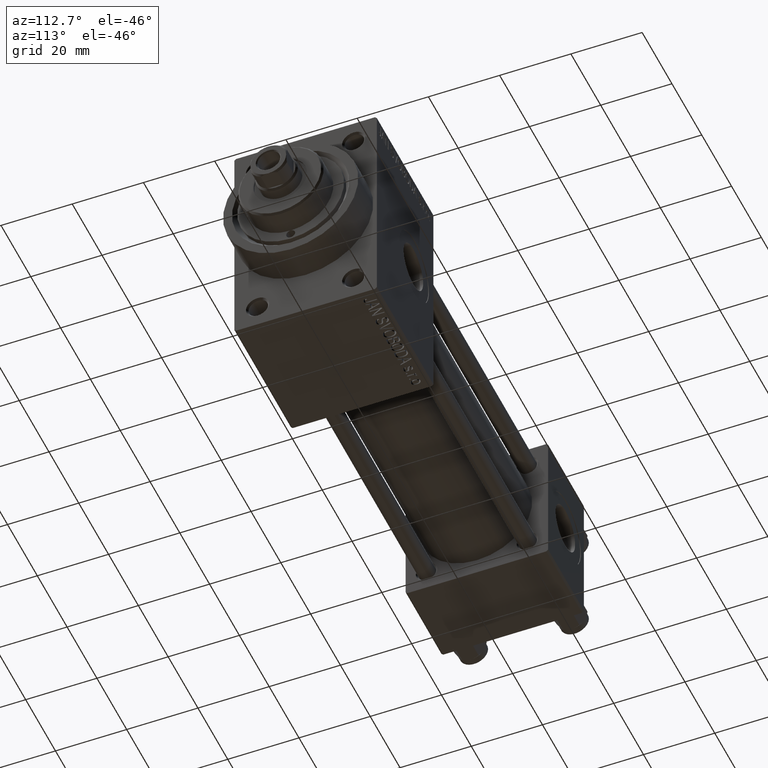
[diagram: clean part render]
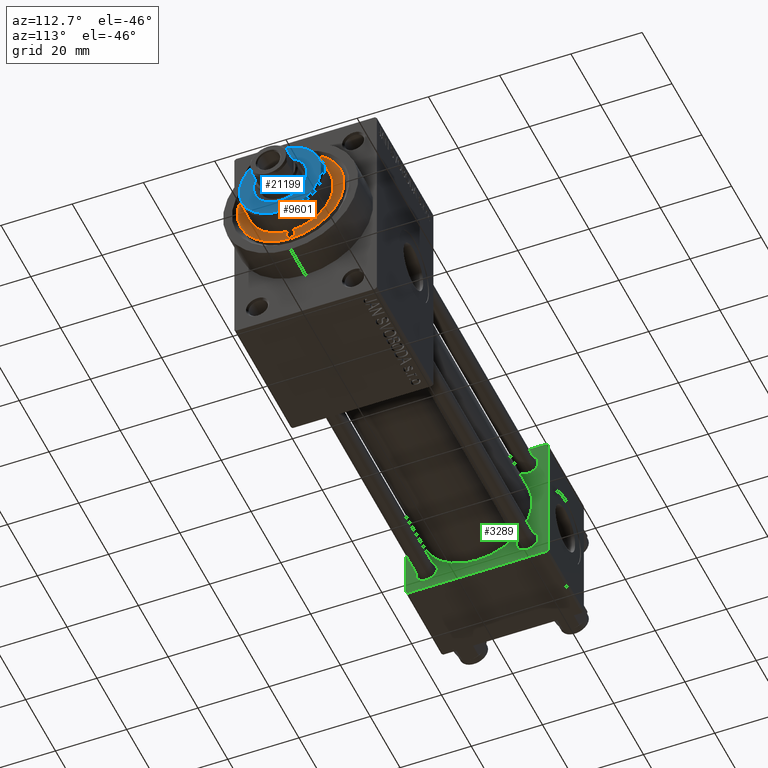
[diagram: same view with three faces highlighted in distinct colors, each labeled with its STEP entity id]
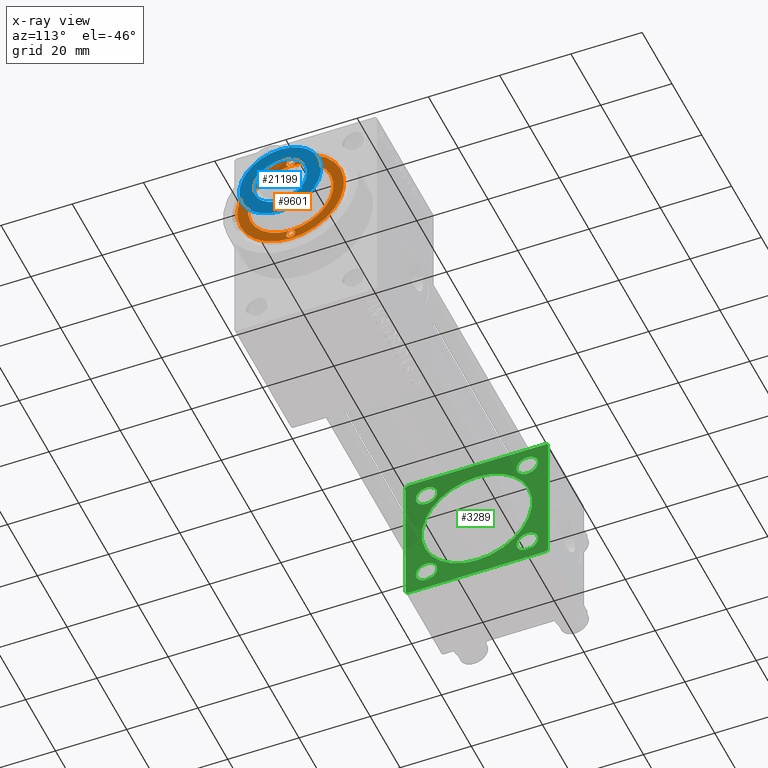
[diagram: x-ray of the same camera — body ghosted, the three highlighted faces saturated]
A machine part, auxiliary view with three faces highlighted in distinct colors.
The next image is the same camera in x-ray (body ghosted, the three faces saturated) — at least one of them is partly hidden behind the body in this view.
Their STEP definitions:

[orange] entity #9601 — the highlighted planar face has unit normal (1, -0, -0).
#1253 = VERTEX_POINT ( 'NONE', #40575 ) ;
#1992 = FACE_OUTER_BOUND ( 'NONE', #33261, .T. ) ;
#2155 = EDGE_CURVE ( 'NONE', #6942, #29614, #13394, .T. ) ;
#2440 = DIRECTION ( 'NONE',  ( -0.000000000000000000, -0.000000000000000000, 1.000000000000000000 ) ) ;
#5170 = AXIS2_PLACEMENT_3D ( 'NONE', #36626, #2440, #47255 ) ;
#5299 = DIRECTION ( 'NONE',  ( 0.000000000000000000, 0.000000000000000000, 1.000000000000000000 ) ) ;
#6942 = VERTEX_POINT ( 'NONE', #45225 ) ;
#9009 = CARTESIAN_POINT ( 'NONE',  ( 0.000000000000000000, 0.000000000000000000, 43.25999999999999801 ) ) ;
#9601 = ADVANCED_FACE ( 'NONE', ( #16197, #1992 ), #42441, .T. ) ;
#10163 = DIRECTION ( 'NONE',  ( 1.000000000000000000, 0.000000000000000000, -0.000000000000000000 ) ) ;
#12681 = CIRCLE ( 'NONE', #18263, 1.249999999999999334 ) ;
#13394 = CIRCLE ( 'NONE', #14188, 1.249999999999999334 ) ;
#14188 = AXIS2_PLACEMENT_3D ( 'NONE', #30004, #45076, #24263 ) ;
#14361 = EDGE_CURVE ( 'NONE', #29614, #6942, #20969, .T. ) ;
#15712 = CARTESIAN_POINT ( 'NONE',  ( -15.00000000000000000, 0.000000000000000000, 43.25999999999999801 ) ) ;
#16197 = FACE_BOUND ( 'NONE', #45028, .T. ) ;
#16420 = DIRECTION ( 'NONE',  ( 1.000000000000000000, 0.000000000000000000, 0.000000000000000000 ) ) ;
#17828 = CARTESIAN_POINT ( 'NONE',  ( 0.000000000000000000, 0.000000000000000000, 43.25999999999999801 ) ) ;
#18214 = ORIENTED_EDGE ( 'NONE', *, *, #2155, .F. ) ;
#18263 = AXIS2_PLACEMENT_3D ( 'NONE', #23261, #39341, #31444 ) ;
#19294 = CARTESIAN_POINT ( 'NONE',  ( 0.000000000000000000, 0.000000000000000000, 43.25999999999999801 ) ) ;
#20403 = DIRECTION ( 'NONE',  ( 1.000000000000000000, 0.000000000000000000, 0.000000000000000000 ) ) ;
#20969 = CIRCLE ( 'NONE', #5170, 1.249999999999999334 ) ;
#21092 = DIRECTION ( 'NONE',  ( 0.000000000000000000, 0.000000000000000000, 1.000000000000000000 ) ) ;
#21755 = AXIS2_PLACEMENT_3D ( 'NONE', #36193, #21092, #40145 ) ;
#21847 = ORIENTED_EDGE ( 'NONE', *, *, #22882, .F. ) ;
#21953 = AXIS2_PLACEMENT_3D ( 'NONE', #9009, #5299, #20403 ) ;
#22871 = CIRCLE ( 'NONE', #39470, 12.00000000000000178 ) ;
#22882 = EDGE_CURVE ( 'NONE', #29614, #41936, #29851, .T. ) ;
#23261 = CARTESIAN_POINT ( 'NONE',  ( 13.25000000000000000, 0.000000000000000000, 43.25999999999999801 ) ) ;
#23948 = CARTESIAN_POINT ( 'NONE',  ( 12.00000000000000178, 1.469576158976824144E-15, 43.25999999999999801 ) ) ;
#24263 = DIRECTION ( 'NONE',  ( 1.000000000000000000, 0.000000000000000000, 0.000000000000000000 ) ) ;
#24313 = EDGE_CURVE ( 'NONE', #32264, #33050, #24354, .T. ) ;
#24354 = CIRCLE ( 'NONE', #21953, 15.00000000000000000 ) ;
#24477 = ORIENTED_EDGE ( 'NONE', *, *, #14361, .F. ) ;
#25751 = DIRECTION ( 'NONE',  ( 1.000000000000000000, 0.000000000000000000, 0.000000000000000000 ) ) ;
#27113 = EDGE_CURVE ( 'NONE', #41936, #29614, #22871, .T. ) ;
#27143 = CARTESIAN_POINT ( 'NONE',  ( -12.00000000000000178, 0.000000000000000000, 43.25999999999999801 ) ) ;
#28094 = CIRCLE ( 'NONE', #43857, 1.249999999999999334 ) ;
#28752 = CARTESIAN_POINT ( 'NONE',  ( 0.000000000000000000, 0.000000000000000000, 43.25999999999999801 ) ) ;
#29614 = VERTEX_POINT ( 'NONE', #27143 ) ;
#29641 = CIRCLE ( 'NONE', #21755, 15.00000000000000000 ) ;
#29739 = CARTESIAN_POINT ( 'NONE',  ( 15.00000000000000000, 1.836970198721029589E-15, 43.25999999999999801 ) ) ;
#29851 = CIRCLE ( 'NONE', #47194, 12.00000000000000178 ) ;
#30004 = CARTESIAN_POINT ( 'NONE',  ( -13.25000000000000178, 0.000000000000000000, 43.25999999999999801 ) ) ;
#30438 = ORIENTED_EDGE ( 'NONE', *, *, #44491, .T. ) ;
#31086 = AXIS2_PLACEMENT_3D ( 'NONE', #28752, #46392, #10163 ) ;
#31290 = CARTESIAN_POINT ( 'NONE',  ( 13.25000000000000000, 0.000000000000000000, 43.25999999999999801 ) ) ;
#31392 = EDGE_CURVE ( 'NONE', #1253, #41936, #12681, .T. ) ;
#31444 = DIRECTION ( 'NONE',  ( 1.000000000000000000, 0.000000000000000000, 0.000000000000000000 ) ) ;
#32264 = VERTEX_POINT ( 'NONE', #29739 ) ;
#32401 = ORIENTED_EDGE ( 'NONE', *, *, #43630, .F. ) ;
#32943 = DIRECTION ( 'NONE',  ( 0.000000000000000000, 0.000000000000000000, 1.000000000000000000 ) ) ;
#33050 = VERTEX_POINT ( 'NONE', #15712 ) ;
#33261 = EDGE_LOOP ( 'NONE', ( #30438, #43522 ) ) ;
#36193 = CARTESIAN_POINT ( 'NONE',  ( 0.000000000000000000, 0.000000000000000000, 43.25999999999999801 ) ) ;
#36626 = CARTESIAN_POINT ( 'NONE',  ( -13.25000000000000178, 0.000000000000000000, 43.25999999999999801 ) ) ;
#37627 = DIRECTION ( 'NONE',  ( 0.000000000000000000, 0.000000000000000000, 1.000000000000000000 ) ) ;
#38319 = ORIENTED_EDGE ( 'NONE', *, *, #31392, .F. ) ;
#39341 = DIRECTION ( 'NONE',  ( -0.000000000000000000, -0.000000000000000000, 1.000000000000000000 ) ) ;
#39470 = AXIS2_PLACEMENT_3D ( 'NONE', #19294, #37627, #25751 ) ;
#40145 = DIRECTION ( 'NONE',  ( 1.000000000000000000, 0.000000000000000000, 0.000000000000000000 ) ) ;
#40575 = CARTESIAN_POINT ( 'NONE',  ( 14.49999999999999822, 0.000000000000000000, 43.25999999999999801 ) ) ;
#41936 = VERTEX_POINT ( 'NONE', #23948 ) ;
#42053 = ORIENTED_EDGE ( 'NONE', *, *, #27113, .F. ) ;
#42441 = PLANE ( 'NONE',  #31086 ) ;
#43522 = ORIENTED_EDGE ( 'NONE', *, *, #24313, .T. ) ;
#43630 = EDGE_CURVE ( 'NONE', #41936, #1253, #28094, .T. ) ;
#43857 = AXIS2_PLACEMENT_3D ( 'NONE', #31290, #46120, #16420 ) ;
#44491 = EDGE_CURVE ( 'NONE', #33050, #32264, #29641, .T. ) ;
#45028 = EDGE_LOOP ( 'NONE', ( #21847, #18214, #24477, #42053, #38319, #32401 ) ) ;
#45076 = DIRECTION ( 'NONE',  ( -0.000000000000000000, -0.000000000000000000, 1.000000000000000000 ) ) ;
#45225 = CARTESIAN_POINT ( 'NONE',  ( -14.50000000000000000, 1.530808498934191571E-16, 43.25999999999999801 ) ) ;
#46120 = DIRECTION ( 'NONE',  ( -0.000000000000000000, -0.000000000000000000, 1.000000000000000000 ) ) ;
#46392 = DIRECTION ( 'NONE',  ( 0.000000000000000000, 0.000000000000000000, 1.000000000000000000 ) ) ;
#47194 = AXIS2_PLACEMENT_3D ( 'NONE', #17828, #32943, #48004 ) ;
#47255 = DIRECTION ( 'NONE',  ( 1.000000000000000000, 0.000000000000000000, 0.000000000000000000 ) ) ;
#48004 = DIRECTION ( 'NONE',  ( 1.000000000000000000, 0.000000000000000000, 0.000000000000000000 ) ) ;

[blue] entity #21199 — the highlighted planar face has unit normal (1, -0, -0).
#1994 = VERTEX_POINT ( 'NONE', #33471 ) ;
#2404 = CARTESIAN_POINT ( 'NONE',  ( 7.500000000000000888, 0.000000000000000000, 50.25999999999999801 ) ) ;
#4205 = AXIS2_PLACEMENT_3D ( 'NONE', #12953, #28089, #32517 ) ;
#5582 = DIRECTION ( 'NONE',  ( 0.000000000000000000, 0.000000000000000000, 1.000000000000000000 ) ) ;
#6201 = EDGE_CURVE ( 'NONE', #1994, #41123, #31090, .T. ) ;
#8629 = DIRECTION ( 'NONE',  ( 0.000000000000000000, 0.000000000000000000, 1.000000000000000000 ) ) ;
#9292 = CARTESIAN_POINT ( 'NONE',  ( 0.000000000000000000, 0.000000000000000000, 50.25999999999999801 ) ) ;
#9480 = EDGE_LOOP ( 'NONE', ( #10875, #37918 ) ) ;
#10420 = FACE_BOUND ( 'NONE', #9480, .T. ) ;
#10875 = ORIENTED_EDGE ( 'NONE', *, *, #34482, .F. ) ;
#11140 = PLANE ( 'NONE',  #27399 ) ;
#12953 = CARTESIAN_POINT ( 'NONE',  ( 0.000000000000000000, 0.000000000000000000, 50.25999999999999801 ) ) ;
#14867 = DIRECTION ( 'NONE',  ( 1.000000000000000000, 0.000000000000000000, -0.000000000000000000 ) ) ;
#16325 = EDGE_CURVE ( 'NONE', #22651, #42898, #30519, .T. ) ;
#20511 = DIRECTION ( 'NONE',  ( 1.000000000000000000, 0.000000000000000000, 0.000000000000000000 ) ) ;
#21199 = ADVANCED_FACE ( 'NONE', ( #10420, #25289 ), #11140, .T. ) ;
#22651 = VERTEX_POINT ( 'NONE', #42837 ) ;
#24026 = EDGE_LOOP ( 'NONE', ( #47396, #46263 ) ) ;
#24218 = CARTESIAN_POINT ( 'NONE',  ( 0.000000000000000000, 0.000000000000000000, 50.25999999999999801 ) ) ;
#25289 = FACE_OUTER_BOUND ( 'NONE', #24026, .T. ) ;
#26269 = AXIS2_PLACEMENT_3D ( 'NONE', #34177, #30698, #45542 ) ;
#27399 = AXIS2_PLACEMENT_3D ( 'NONE', #29013, #40392, #14867 ) ;
#28089 = DIRECTION ( 'NONE',  ( 0.000000000000000000, 0.000000000000000000, 1.000000000000000000 ) ) ;
#28494 = AXIS2_PLACEMENT_3D ( 'NONE', #9292, #5582, #48609 ) ;
#29013 = CARTESIAN_POINT ( 'NONE',  ( 0.000000000000000000, 0.000000000000000000, 50.25999999999999801 ) ) ;
#29746 = EDGE_CURVE ( 'NONE', #42898, #22651, #43482, .T. ) ;
#30240 = CIRCLE ( 'NONE', #26269, 7.500000000000000888 ) ;
#30519 = CIRCLE ( 'NONE', #36839, 11.50000000000000355 ) ;
#30698 = DIRECTION ( 'NONE',  ( 0.000000000000000000, 0.000000000000000000, 1.000000000000000000 ) ) ;
#31090 = CIRCLE ( 'NONE', #4205, 7.500000000000000888 ) ;
#32517 = DIRECTION ( 'NONE',  ( 1.000000000000000000, 0.000000000000000000, 0.000000000000000000 ) ) ;
#33232 = CARTESIAN_POINT ( 'NONE',  ( -11.50000000000000355, 0.000000000000000000, 50.25999999999999801 ) ) ;
#33471 = CARTESIAN_POINT ( 'NONE',  ( -7.500000000000000888, 9.184850993605149917E-16, 50.25999999999999801 ) ) ;
#34177 = CARTESIAN_POINT ( 'NONE',  ( 0.000000000000000000, 0.000000000000000000, 50.25999999999999801 ) ) ;
#34482 = EDGE_CURVE ( 'NONE', #41123, #1994, #30240, .T. ) ;
#36839 = AXIS2_PLACEMENT_3D ( 'NONE', #24218, #8629, #20511 ) ;
#37918 = ORIENTED_EDGE ( 'NONE', *, *, #6201, .F. ) ;
#40392 = DIRECTION ( 'NONE',  ( 0.000000000000000000, 0.000000000000000000, 1.000000000000000000 ) ) ;
#41123 = VERTEX_POINT ( 'NONE', #2404 ) ;
#42837 = CARTESIAN_POINT ( 'NONE',  ( 11.50000000000000355, 1.438959988998140357E-15, 50.25999999999999801 ) ) ;
#42898 = VERTEX_POINT ( 'NONE', #33232 ) ;
#43482 = CIRCLE ( 'NONE', #28494, 11.50000000000000355 ) ;
#45542 = DIRECTION ( 'NONE',  ( 1.000000000000000000, 0.000000000000000000, 0.000000000000000000 ) ) ;
#46263 = ORIENTED_EDGE ( 'NONE', *, *, #16325, .T. ) ;
#47396 = ORIENTED_EDGE ( 'NONE', *, *, #29746, .T. ) ;
#48609 = DIRECTION ( 'NONE',  ( 1.000000000000000000, 0.000000000000000000, 0.000000000000000000 ) ) ;

[green] entity #3289 — the highlighted planar face has unit normal (-1, 0, 0).
#514 = VECTOR ( 'NONE', #43061, 1000.000000000000000 ) ;
#541 = CARTESIAN_POINT ( 'NONE',  ( 24.00000000000000000, -20.00000000000000355, 19.49999999999998224 ) ) ;
#578 = CARTESIAN_POINT ( 'NONE',  ( 23.99999999999999289, -7.038826752868131828E-16, -15.50000000000000000 ) ) ;
#641 = CARTESIAN_POINT ( 'NONE',  ( 24.00000000000000000, -14.14999999999999503, -14.15000000000000391 ) ) ;
#756 = CARTESIAN_POINT ( 'NONE',  ( 23.99999999999999289, -2.602085213965210642E-15, 0.000000000000000000 ) ) ;
#970 = PLANE ( 'NONE',  #46616 ) ;
#1248 = DIRECTION ( 'NONE',  ( 0.000000000000000000, 0.000000000000000000, 1.000000000000000000 ) ) ;
#1619 = EDGE_CURVE ( 'NONE', #37822, #20559, #22679, .T. ) ;
#1846 = DIRECTION ( 'NONE',  ( 0.000000000000000000, 0.000000000000000000, 1.000000000000000000 ) ) ;
#2167 = CARTESIAN_POINT ( 'NONE',  ( 24.00000000000000000, 19.50000000000000000, 20.00000000000000000 ) ) ;
#2198 = LINE ( 'NONE', #24495, #514 ) ;
#3018 = EDGE_CURVE ( 'NONE', #10476, #5213, #46828, .T. ) ;
#3032 = CARTESIAN_POINT ( 'NONE',  ( 24.00000000000000000, 20.00000000000000000, 19.49999999999999289 ) ) ;
#3202 = VERTEX_POINT ( 'NONE', #10422 ) ;
#3267 = LINE ( 'NONE', #18377, #14464 ) ;
#3289 = ADVANCED_FACE ( 'NONE', ( #45790, #8168, #42577, #15355, #23270, #7921 ), #970, .F. ) ;
#4058 = DIRECTION ( 'NONE',  ( 0.000000000000000000, 0.000000000000000000, 1.000000000000000000 ) ) ;
#4086 = DIRECTION ( 'NONE',  ( 0.000000000000000000, -1.000000000000000000, 1.734723475976807094E-16 ) ) ;
#4476 = DIRECTION ( 'NONE',  ( -1.000000000000000000, -0.000000000000000000, -0.000000000000000000 ) ) ;
#4787 = CARTESIAN_POINT ( 'NONE',  ( 24.00000000000000000, 14.14999999999999858, 14.15000000000000036 ) ) ;
#4991 = CARTESIAN_POINT ( 'NONE',  ( 24.00000000000000000, 19.50000000000000000, 20.00000000000000000 ) ) ;
#5213 = VERTEX_POINT ( 'NONE', #21655 ) ;
#5444 = CARTESIAN_POINT ( 'NONE',  ( 24.00000000000000000, 14.14999999999999858, 11.15000000000001279 ) ) ;
#5652 = CARTESIAN_POINT ( 'NONE',  ( 23.99999999999999289, -2.602085213965210642E-15, 0.000000000000000000 ) ) ;
#5729 = DIRECTION ( 'NONE',  ( -1.000000000000000000, -0.000000000000000000, -0.000000000000000000 ) ) ;
#5784 = ORIENTED_EDGE ( 'NONE', *, *, #22131, .T. ) ;
#6099 = EDGE_CURVE ( 'NONE', #8310, #38041, #16833, .T. ) ;
#6266 = ORIENTED_EDGE ( 'NONE', *, *, #25943, .F. ) ;
#6296 = VECTOR ( 'NONE', #9206, 1000.000000000000000 ) ;
#6378 = EDGE_CURVE ( 'NONE', #32792, #3202, #3267, .T. ) ;
#7233 = DIRECTION ( 'NONE',  ( 0.000000000000000000, 0.000000000000000000, -1.000000000000000000 ) ) ;
#7484 = CARTESIAN_POINT ( 'NONE',  ( 24.00000000000000000, -14.14999999999999503, 14.15000000000000391 ) ) ;
#7566 = AXIS2_PLACEMENT_3D ( 'NONE', #7484, #30035, #15150 ) ;
#7921 = FACE_OUTER_BOUND ( 'NONE', #21884, .T. ) ;
#8168 = FACE_BOUND ( 'NONE', #33075, .T. ) ;
#8257 = ORIENTED_EDGE ( 'NONE', *, *, #46276, .T. ) ;
#8310 = VERTEX_POINT ( 'NONE', #44126 ) ;
#8382 = EDGE_LOOP ( 'NONE', ( #45417, #9544 ) ) ;
#9206 = DIRECTION ( 'NONE',  ( 0.000000000000000000, 8.673617379884036705E-17, -1.000000000000000000 ) ) ;
#9544 = ORIENTED_EDGE ( 'NONE', *, *, #43685, .T. ) ;
#9736 = ORIENTED_EDGE ( 'NONE', *, *, #30357, .T. ) ;
#9838 = ORIENTED_EDGE ( 'NONE', *, *, #45590, .T. ) ;
#9928 = VECTOR ( 'NONE', #20100, 999.9999999999998863 ) ;
#10140 = EDGE_LOOP ( 'NONE', ( #27365, #9838 ) ) ;
#10422 = CARTESIAN_POINT ( 'NONE',  ( 24.00000000000000000, 20.00000000000000000, -19.50000000000002132 ) ) ;
#10476 = VERTEX_POINT ( 'NONE', #541 ) ;
#10502 = ORIENTED_EDGE ( 'NONE', *, *, #10936, .T. ) ;
#10821 = CARTESIAN_POINT ( 'NONE',  ( 23.99999999999999289, -2.602085213965210642E-15, 15.50000000000000000 ) ) ;
#10936 = EDGE_CURVE ( 'NONE', #42395, #10476, #22650, .T. ) ;
#10990 = VECTOR ( 'NONE', #4086, 1000.000000000000000 ) ;
#11381 = DIRECTION ( 'NONE',  ( -1.000000000000000000, 0.000000000000000000, -0.000000000000000000 ) ) ;
#11889 = ORIENTED_EDGE ( 'NONE', *, *, #46377, .T. ) ;
#11892 = EDGE_CURVE ( 'NONE', #23851, #26540, #36703, .T. ) ;
#12131 = DIRECTION ( 'NONE',  ( -0.000000000000000000, 0.7071067811865524577, 0.7071067811865426878 ) ) ;
#12157 = DIRECTION ( 'NONE',  ( 1.000000000000000000, 0.000000000000000000, 0.000000000000000000 ) ) ;
#12322 = CARTESIAN_POINT ( 'NONE',  ( 24.00000000000000000, -14.14999999999999503, 17.15000000000002345 ) ) ;
#13141 = CIRCLE ( 'NONE', #24241, 3.000000000000018208 ) ;
#13463 = CARTESIAN_POINT ( 'NONE',  ( 24.00000000000000000, -19.49999999999999289, 19.99999999999998934 ) ) ;
#14323 = VERTEX_POINT ( 'NONE', #5444 ) ;
#14464 = VECTOR ( 'NONE', #7233, 1000.000000000000000 ) ;
#15150 = DIRECTION ( 'NONE',  ( 0.000000000000000000, 0.000000000000000000, 1.000000000000000000 ) ) ;
#15355 = FACE_BOUND ( 'NONE', #8382, .T. ) ;
#15727 = AXIS2_PLACEMENT_3D ( 'NONE', #38891, #4476, #1248 ) ;
#16311 = DIRECTION ( 'NONE',  ( 0.000000000000000000, 0.000000000000000000, 1.000000000000000000 ) ) ;
#16833 = CIRCLE ( 'NONE', #33460, 2.999999999999990674 ) ;
#16946 = ORIENTED_EDGE ( 'NONE', *, *, #26008, .T. ) ;
#17085 = CARTESIAN_POINT ( 'NONE',  ( 24.00000000000000000, 14.14999999999999858, -17.14999999999999147 ) ) ;
#17517 = CARTESIAN_POINT ( 'NONE',  ( 24.00000000000000000, -20.00000000000000355, 19.49999999999998224 ) ) ;
#18161 = ORIENTED_EDGE ( 'NONE', *, *, #6099, .T. ) ;
#18177 = CARTESIAN_POINT ( 'NONE',  ( 24.00000000000000000, -14.14999999999999503, -11.14999999999998614 ) ) ;
#18377 = CARTESIAN_POINT ( 'NONE',  ( 24.00000000000000000, 20.00000000000000000, 20.00000000000000000 ) ) ;
#18420 = CIRCLE ( 'NONE', #46892, 2.999999999999990674 ) ;
#18457 = VECTOR ( 'NONE', #29173, 1000.000000000000114 ) ;
#18638 = CIRCLE ( 'NONE', #7566, 3.000000000000018208 ) ;
#19116 = CARTESIAN_POINT ( 'NONE',  ( 24.00000000000000000, -19.50000000000000711, -20.00000000000000000 ) ) ;
#19215 = VERTEX_POINT ( 'NONE', #30175 ) ;
#19562 = CARTESIAN_POINT ( 'NONE',  ( 24.00000000000000000, 0.000000000000000000, 0.000000000000000000 ) ) ;
#20100 = DIRECTION ( 'NONE',  ( 0.000000000000000000, -0.7071067811865425767, 0.7071067811865525687 ) ) ;
#20141 = DIRECTION ( 'NONE',  ( 0.000000000000000000, 0.000000000000000000, 1.000000000000000000 ) ) ;
#20341 = LINE ( 'NONE', #4991, #9928 ) ;
#20559 = VERTEX_POINT ( 'NONE', #28456 ) ;
#20606 = CARTESIAN_POINT ( 'NONE',  ( 24.00000000000000000, -14.14999999999999503, 14.15000000000000391 ) ) ;
#21022 = EDGE_CURVE ( 'NONE', #40204, #43272, #13141, .T. ) ;
#21111 = CIRCLE ( 'NONE', #29825, 3.000000000000018208 ) ;
#21655 = CARTESIAN_POINT ( 'NONE',  ( 24.00000000000000000, -20.00000000000000000, -19.49999999999999645 ) ) ;
#21884 = EDGE_LOOP ( 'NONE', ( #38158, #48369, #42214, #11889, #5784, #10502, #37129, #9736 ) ) ;
#22131 = EDGE_CURVE ( 'NONE', #30349, #42395, #2198, .T. ) ;
#22650 = LINE ( 'NONE', #17517, #18457 ) ;
#22679 = LINE ( 'NONE', #38015, #10990 ) ;
#22837 = CIRCLE ( 'NONE', #15727, 2.999999999999990674 ) ;
#23270 = FACE_BOUND ( 'NONE', #23914, .T. ) ;
#23516 = LINE ( 'NONE', #46034, #45274 ) ;
#23606 = DIRECTION ( 'NONE',  ( -1.000000000000000000, -0.000000000000000000, -0.000000000000000000 ) ) ;
#23851 = VERTEX_POINT ( 'NONE', #10821 ) ;
#23914 = EDGE_LOOP ( 'NONE', ( #40882, #6266 ) ) ;
#24146 = CIRCLE ( 'NONE', #35987, 3.000000000000018208 ) ;
#24241 = AXIS2_PLACEMENT_3D ( 'NONE', #20606, #5729, #28049 ) ;
#24495 = CARTESIAN_POINT ( 'NONE',  ( 24.00000000000000000, 20.00000000000000000, 20.00000000000000000 ) ) ;
#25943 = EDGE_CURVE ( 'NONE', #26540, #23851, #25980, .T. ) ;
#25980 = CIRCLE ( 'NONE', #33137, 15.50000000000000000 ) ;
#26008 = EDGE_CURVE ( 'NONE', #38041, #8310, #22837, .T. ) ;
#26420 = ORIENTED_EDGE ( 'NONE', *, *, #21022, .T. ) ;
#26540 = VERTEX_POINT ( 'NONE', #578 ) ;
#27365 = ORIENTED_EDGE ( 'NONE', *, *, #48990, .T. ) ;
#27719 = DIRECTION ( 'NONE',  ( 1.000000000000000000, 0.000000000000000000, 0.000000000000000000 ) ) ;
#28049 = DIRECTION ( 'NONE',  ( 0.000000000000000000, 0.000000000000000000, 1.000000000000000000 ) ) ;
#28456 = CARTESIAN_POINT ( 'NONE',  ( 24.00000000000000000, -19.50000000000000711, -20.00000000000000000 ) ) ;
#28863 = CIRCLE ( 'NONE', #37537, 2.999999999999990674 ) ;
#29173 = DIRECTION ( 'NONE',  ( -0.000000000000000000, -0.7071067811865500152, -0.7071067811865451302 ) ) ;
#29576 = AXIS2_PLACEMENT_3D ( 'NONE', #5652, #27719, #16311 ) ;
#29825 = AXIS2_PLACEMENT_3D ( 'NONE', #35732, #23606, #20141 ) ;
#30035 = DIRECTION ( 'NONE',  ( -1.000000000000000000, -0.000000000000000000, -0.000000000000000000 ) ) ;
#30175 = CARTESIAN_POINT ( 'NONE',  ( 24.00000000000000000, -14.14999999999999503, -17.15000000000002345 ) ) ;
#30349 = VERTEX_POINT ( 'NONE', #2167 ) ;
#30357 = EDGE_CURVE ( 'NONE', #5213, #20559, #41636, .T. ) ;
#30747 = DIRECTION ( 'NONE',  ( 0.000000000000000000, 0.000000000000000000, 1.000000000000000000 ) ) ;
#30877 = DIRECTION ( 'NONE',  ( -1.000000000000000000, -0.000000000000000000, -0.000000000000000000 ) ) ;
#31349 = CARTESIAN_POINT ( 'NONE',  ( 24.00000000000000000, 14.14999999999999858, 14.15000000000000036 ) ) ;
#31357 = CARTESIAN_POINT ( 'NONE',  ( 24.00000000000000000, 14.14999999999999858, 17.14999999999999147 ) ) ;
#32792 = VERTEX_POINT ( 'NONE', #3032 ) ;
#33075 = EDGE_LOOP ( 'NONE', ( #16946, #18161 ) ) ;
#33137 = AXIS2_PLACEMENT_3D ( 'NONE', #756, #12157, #30747 ) ;
#33460 = AXIS2_PLACEMENT_3D ( 'NONE', #41696, #45889, #4058 ) ;
#35067 = DIRECTION ( 'NONE',  ( 0.000000000000000000, 0.000000000000000000, 1.000000000000000000 ) ) ;
#35245 = DIRECTION ( 'NONE',  ( 0.000000000000000000, 0.000000000000000000, 1.000000000000000000 ) ) ;
#35443 = EDGE_CURVE ( 'NONE', #37822, #3202, #23516, .T. ) ;
#35732 = CARTESIAN_POINT ( 'NONE',  ( 24.00000000000000000, -14.14999999999999503, -14.15000000000000391 ) ) ;
#35987 = AXIS2_PLACEMENT_3D ( 'NONE', #641, #30877, #35067 ) ;
#36703 = CIRCLE ( 'NONE', #29576, 15.50000000000000000 ) ;
#37129 = ORIENTED_EDGE ( 'NONE', *, *, #3018, .T. ) ;
#37537 = AXIS2_PLACEMENT_3D ( 'NONE', #4787, #42892, #35245 ) ;
#37822 = VERTEX_POINT ( 'NONE', #48539 ) ;
#38015 = CARTESIAN_POINT ( 'NONE',  ( 24.00000000000000000, 20.00000000000000000, -20.00000000000000711 ) ) ;
#38041 = VERTEX_POINT ( 'NONE', #17085 ) ;
#38158 = ORIENTED_EDGE ( 'NONE', *, *, #1619, .F. ) ;
#38891 = CARTESIAN_POINT ( 'NONE',  ( 24.00000000000000000, 14.14999999999999858, -14.15000000000000036 ) ) ;
#39437 = CARTESIAN_POINT ( 'NONE',  ( 24.00000000000000000, -14.14999999999999503, 11.14999999999998614 ) ) ;
#40006 = EDGE_CURVE ( 'NONE', #14323, #44725, #18420, .T. ) ;
#40204 = VERTEX_POINT ( 'NONE', #39437 ) ;
#40882 = ORIENTED_EDGE ( 'NONE', *, *, #11892, .F. ) ;
#41206 = EDGE_LOOP ( 'NONE', ( #26420, #8257 ) ) ;
#41636 = LINE ( 'NONE', #19116, #46669 ) ;
#41696 = CARTESIAN_POINT ( 'NONE',  ( 24.00000000000000000, 14.14999999999999858, -14.15000000000000036 ) ) ;
#41887 = DIRECTION ( 'NONE',  ( 0.000000000000000000, 0.7071067811865401342, -0.7071067811865549002 ) ) ;
#42214 = ORIENTED_EDGE ( 'NONE', *, *, #6378, .F. ) ;
#42333 = DIRECTION ( 'NONE',  ( -0.000000000000000000, 0.000000000000000000, 1.000000000000000000 ) ) ;
#42395 = VERTEX_POINT ( 'NONE', #13463 ) ;
#42577 = FACE_BOUND ( 'NONE', #41206, .T. ) ;
#42715 = DIRECTION ( 'NONE',  ( -1.000000000000000000, -0.000000000000000000, -0.000000000000000000 ) ) ;
#42892 = DIRECTION ( 'NONE',  ( -1.000000000000000000, -0.000000000000000000, -0.000000000000000000 ) ) ;
#43061 = DIRECTION ( 'NONE',  ( 0.000000000000000000, -1.000000000000000000, -2.602085213965210149E-16 ) ) ;
#43272 = VERTEX_POINT ( 'NONE', #12322 ) ;
#43388 = VERTEX_POINT ( 'NONE', #18177 ) ;
#43594 = CARTESIAN_POINT ( 'NONE',  ( 24.00000000000000000, -20.00000000000000355, 19.99999999999998934 ) ) ;
#43685 = EDGE_CURVE ( 'NONE', #44725, #14323, #28863, .T. ) ;
#44126 = CARTESIAN_POINT ( 'NONE',  ( 24.00000000000000000, 14.14999999999999858, -11.15000000000001279 ) ) ;
#44725 = VERTEX_POINT ( 'NONE', #31357 ) ;
#45274 = VECTOR ( 'NONE', #12131, 1000.000000000000000 ) ;
#45417 = ORIENTED_EDGE ( 'NONE', *, *, #40006, .T. ) ;
#45590 = EDGE_CURVE ( 'NONE', #43388, #19215, #24146, .T. ) ;
#45790 = FACE_BOUND ( 'NONE', #10140, .T. ) ;
#45889 = DIRECTION ( 'NONE',  ( -1.000000000000000000, -0.000000000000000000, -0.000000000000000000 ) ) ;
#46034 = CARTESIAN_POINT ( 'NONE',  ( 24.00000000000000000, 20.00000000000000000, -19.50000000000002132 ) ) ;
#46276 = EDGE_CURVE ( 'NONE', #43272, #40204, #18638, .T. ) ;
#46377 = EDGE_CURVE ( 'NONE', #32792, #30349, #20341, .T. ) ;
#46616 = AXIS2_PLACEMENT_3D ( 'NONE', #19562, #11381, #42333 ) ;
#46669 = VECTOR ( 'NONE', #41887, 1000.000000000000000 ) ;
#46828 = LINE ( 'NONE', #43594, #6296 ) ;
#46892 = AXIS2_PLACEMENT_3D ( 'NONE', #31349, #42715, #1846 ) ;
#48369 = ORIENTED_EDGE ( 'NONE', *, *, #35443, .T. ) ;
#48539 = CARTESIAN_POINT ( 'NONE',  ( 24.00000000000000000, 19.50000000000000711, -20.00000000000000711 ) ) ;
#48990 = EDGE_CURVE ( 'NONE', #19215, #43388, #21111, .T. ) ;